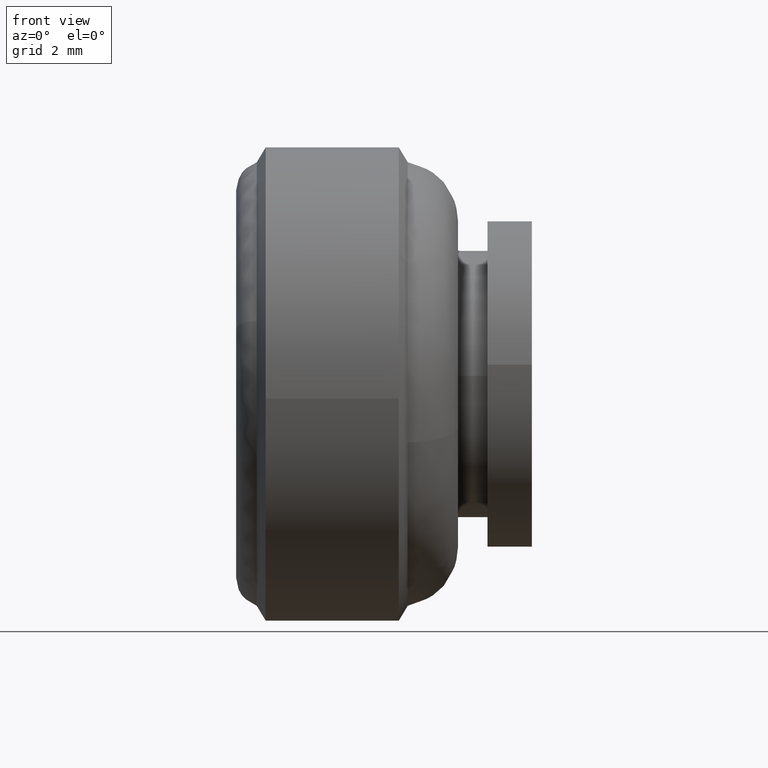
[diagram: clean part render]
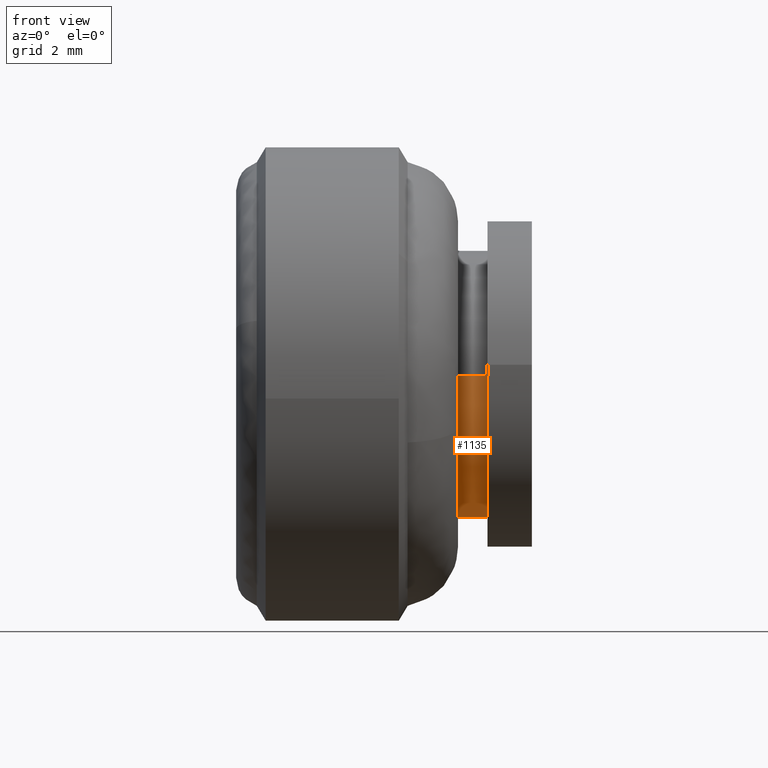
[diagram: same view with one face highlighted and labeled with its STEP entity id]
A machine part, front view. The second image highlights one B-rep face of the part: STEP entity #1135.
In plain terms, the highlighted face is a freeform B-spline surface patch.
Its self-contained STEP definition (entity closure, byte-faithful):
#972=CARTESIAN_POINT('',(-2.499999999999965,4.468543036870203,-0.531152640619235));
#973=VERTEX_POINT('',#972);
#991=CARTESIAN_POINT('',(-2.500000000000058,-4.491606859270529,0.274714072691737));
#992=VERTEX_POINT('',#991);
#1006=CARTESIAN_POINT('',(-1.500000000000055,-4.491606856058430,0.274714125210752));
#1007=VERTEX_POINT('',#1006);
#1008=CARTESIAN_POINT('',(-2.500000000000058,-4.491606859270529,0.274714072691737));
#1009=CARTESIAN_POINT('',(-1.500000000000055,-4.491606856058430,0.274714125210752));
#1010=QUASI_UNIFORM_CURVE('',1,(#1008,#1009),.UNSPECIFIED.,.F.,.U.);
#1011=EDGE_CURVE('',#992,#1007,#1010,.T.);
#1028=CARTESIAN_POINT('',(-1.500000000000055,4.468543034840816,-0.531152657692342));
#1029=VERTEX_POINT('',#1028);
#1045=CARTESIAN_POINT('',(-2.499999999999965,4.468543036870203,-0.531152640619235));
#1046=CARTESIAN_POINT('',(-1.500000000000055,4.468543034840816,-0.531152657692342));
#1047=QUASI_UNIFORM_CURVE('',1,(#1045,#1046),.UNSPECIFIED.,.F.,.U.);
#1048=EDGE_CURVE('',#973,#1029,#1047,.T.);
#1053=CARTESIAN_POINT('',(-2.524999999999943,-4.491606592898400,0.274718427906856));
#1054=CARTESIAN_POINT('',(-2.524999999999943,-4.766325020805256,-4.216888164991543));
#1055=CARTESIAN_POINT('',(-2.524999999999943,-0.274718427906856,-4.491606592898400));
#1056=CARTESIAN_POINT('',(-2.524999999999943,3.966945708777753,-4.751037885296373));
#1057=CARTESIAN_POINT('',(-2.524999999999943,4.468542868636499,-0.531154055955413));
#1058=CARTESIAN_POINT('',(-1.474375000000058,-4.491606592898400,0.274718427906856));
#1059=CARTESIAN_POINT('',(-1.474375000000058,-4.766325020805256,-4.216888164991543));
#1060=CARTESIAN_POINT('',(-1.474375000000058,-0.274718427906856,-4.491606592898400));
#1061=CARTESIAN_POINT('',(-1.474375000000058,3.966945708777753,-4.751037885296373));
#1062=CARTESIAN_POINT('',(-1.474375000000058,4.468542868636499,-0.531154055955413));
#1070=(BOUNDED_SURFACE()B_SPLINE_SURFACE(2,1,((#1053,#1058),(#1054,#1059),(#1055,#1060),(#1056,#1061),(#1057,#1062)),.UNSPECIFIED.,.F.,.F.,.U.)B_SPLINE_SURFACE_WITH_KNOTS((3,2,3),(2,2),(0.0,7.455844122715709,14.613454480522790),(0.0,1.0),.UNSPECIFIED.)GEOMETRIC_REPRESENTATION_ITEM()RATIONAL_B_SPLINE_SURFACE(((1.0,1.0),(0.707106781186548,0.707106781186548),(1.0,1.0),(0.718822509939086,0.718822509939086),(0.977505800795127,0.977505800795127)))REPRESENTATION_ITEM('')SURFACE());
#1071=CARTESIAN_POINT('',(-2.499999999999945,0.0,-4.500000000000000));
#1072=VERTEX_POINT('',#1071);
#1073=CARTESIAN_POINT('',(-2.499999999999945,0.0,-4.500000000000000));
#1074=CARTESIAN_POINT('',(-2.499999999999946,3.996786641607810,-4.500000000000001));
#1075=CARTESIAN_POINT('',(-2.499999999999965,4.468543036870203,-0.531152640619235));
#1083=(BOUNDED_CURVE()B_SPLINE_CURVE(2,(#1073,#1074,#1075),.UNSPECIFIED.,.F.,.U.)B_SPLINE_CURVE_WITH_KNOTS((3,3),(0.500000000000000,0.729562527044597),.UNSPECIFIED.)CURVE()GEOMETRIC_REPRESENTATION_ITEM()RATIONAL_B_SPLINE_CURVE((1.0,0.731050770139831,0.956026859106850))REPRESENTATION_ITEM(''));
#1084=EDGE_CURVE('',#1072,#973,#1083,.T.);
#1085=ORIENTED_EDGE('',*,*,#1084,.T.);
#1086=ORIENTED_EDGE('',*,*,#1048,.T.);
#1087=CARTESIAN_POINT('',(-1.500000000000055,0.0,-4.500000000000000));
#1088=VERTEX_POINT('',#1087);
#1089=CARTESIAN_POINT('',(-1.500000000000055,0.0,-4.500000000000000));
#1090=CARTESIAN_POINT('',(-1.500000000000055,3.996786626229659,-4.500000000000002));
#1091=CARTESIAN_POINT('',(-1.500000000000055,4.468543034840816,-0.531152657692342));
#1099=(BOUNDED_CURVE()B_SPLINE_CURVE(2,(#1089,#1090,#1091),.UNSPECIFIED.,.F.,.U.)B_SPLINE_CURVE_WITH_KNOTS((3,3),(0.0,0.229562526398880),.UNSPECIFIED.)CURVE()GEOMETRIC_REPRESENTATION_ITEM()RATIONAL_B_SPLINE_CURVE((1.0,0.731050770896335,0.956026857841219))REPRESENTATION_ITEM(''));
#1100=EDGE_CURVE('',#1088,#1029,#1099,.T.);
#1101=ORIENTED_EDGE('',*,*,#1100,.F.);
#1102=CARTESIAN_POINT('',(-1.500000000000055,-4.491606856058431,0.274714125210752));
#1103=CARTESIAN_POINT('',(-1.500000000000055,-4.500000000000000,0.137485277463585));
#1104=CARTESIAN_POINT('',(-1.500000000000055,-4.500000000000000,0.0));
#1105=CARTESIAN_POINT('',(-1.500000000000055,-4.500000000000000,-4.500000000000000));
#1106=CARTESIAN_POINT('',(-1.500000000000055,0.0,-4.500000000000000));
#1114=(BOUNDED_CURVE()B_SPLINE_CURVE(2,(#1102,#1103,#1104,#1105,#1106),.UNSPECIFIED.,.F.,.U.)B_SPLINE_CURVE_WITH_KNOTS((3,2,3),(0.739333127531710,0.750000000000000,1.0),.UNSPECIFIED.)CURVE()GEOMETRIC_REPRESENTATION_ITEM()RATIONAL_B_SPLINE_CURVE((0.976072395920838,0.987502981552359,1.0,0.707106781186547,1.0))REPRESENTATION_ITEM(''));
#1115=EDGE_CURVE('',#1007,#1088,#1114,.T.);
#1116=ORIENTED_EDGE('',*,*,#1115,.F.);
#1117=ORIENTED_EDGE('',*,*,#1011,.F.);
#1118=CARTESIAN_POINT('',(-2.500000000000058,-4.491606859270529,0.274714072691737));
#1119=CARTESIAN_POINT('',(-2.499999999999945,-4.500000000000000,0.137485251130452));
#1120=CARTESIAN_POINT('',(-2.499999999999945,-4.500000000000000,0.0));
#1121=CARTESIAN_POINT('',(-2.499999999999945,-4.500000000000000,-4.500000000000000));
#1122=CARTESIAN_POINT('',(-2.499999999999945,0.0,-4.500000000000000));
#1130=(BOUNDED_CURVE()B_SPLINE_CURVE(2,(#1118,#1119,#1120,#1121,#1122),.UNSPECIFIED.,.F.,.U.)B_SPLINE_CURVE_WITH_KNOTS((3,2,3),(0.239333129549248,0.250000000000000,0.500000000000000),.UNSPECIFIED.)CURVE()GEOMETRIC_REPRESENTATION_ITEM()RATIONAL_B_SPLINE_CURVE((0.976072400244813,0.987502983916053,1.0,0.707106781186547,1.0))REPRESENTATION_ITEM(''));
#1131=EDGE_CURVE('',#992,#1072,#1130,.T.);
#1132=ORIENTED_EDGE('',*,*,#1131,.T.);
#1133=EDGE_LOOP('',(#1085,#1086,#1101,#1116,#1117,#1132));
#1134=FACE_OUTER_BOUND('',#1133,.T.);
#1135=ADVANCED_FACE('',(#1134),#1070,.T.);